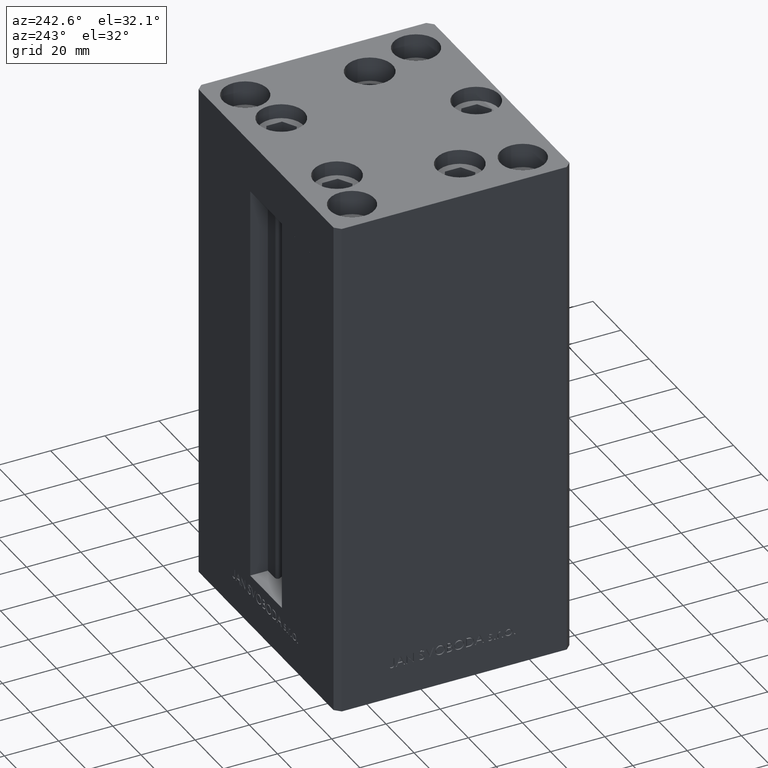
[diagram: clean part render]
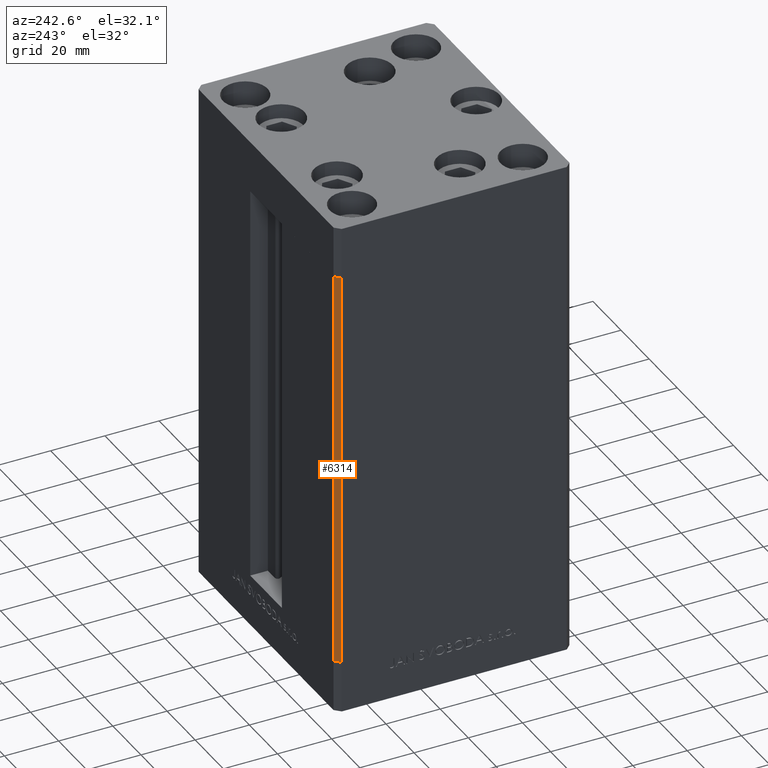
[diagram: same view with one face highlighted and labeled with its STEP entity id]
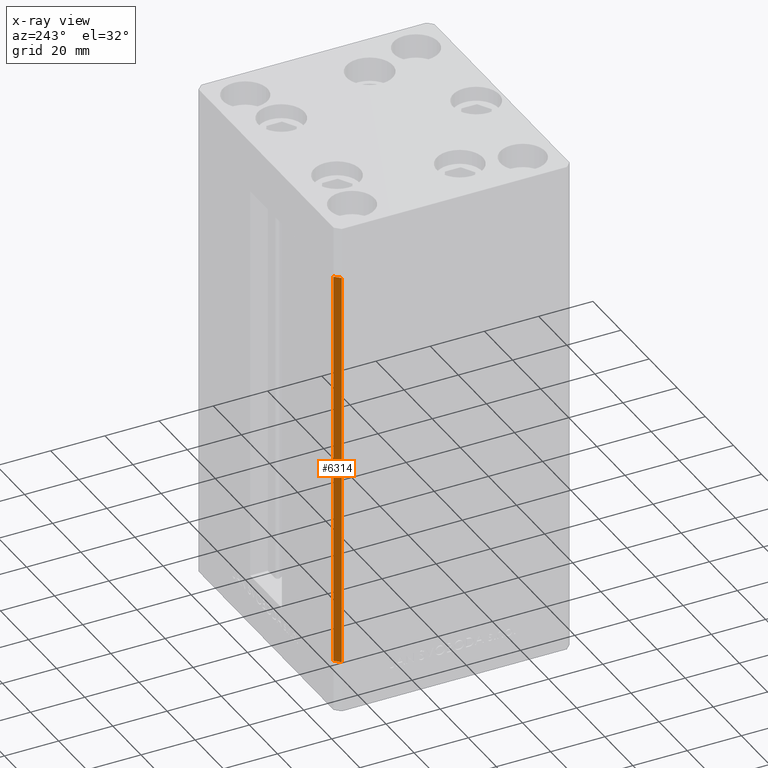
[diagram: x-ray of the same camera — body ghosted, the highlighted face saturated]
A machine part, auxiliary view. The second image highlights one B-rep face of the part: STEP entity #6314.
The next image is the same camera in x-ray: the body ghosted, the highlighted face saturated — about 0% of this face is hidden behind the body in this view.
In plain terms, the highlighted planar face has unit normal (0.7071, -0.7071, 0).
Its self-contained STEP definition (entity closure, byte-faithful):
#832 = CARTESIAN_POINT ( 'NONE',  ( -48.00000000000000711, 43.50000000000000000, 0.000000000000000000 ) ) ;
#2071 = CARTESIAN_POINT ( 'NONE',  ( -48.00000000000000711, 43.50000000000000000, 148.5000000000000000 ) ) ;
#3259 = EDGE_CURVE ( 'NONE', #13105, #35859, #6102, .T. ) ;
#3420 = VECTOR ( 'NONE', #36685, 1000.000000000000000 ) ;
#3711 = DIRECTION ( 'NONE',  ( -0.000000000000000000, -0.000000000000000000, -1.000000000000000000 ) ) ;
#6086 = LINE ( 'NONE', #2071, #3420 ) ;
#6102 = LINE ( 'NONE', #43738, #36860 ) ;
#6314 = ADVANCED_FACE ( 'NONE', ( #38898 ), #47164, .F. ) ;
#11240 = LINE ( 'NONE', #22529, #28322 ) ;
#11816 = ORIENTED_EDGE ( 'NONE', *, *, #21208, .F. ) ;
#12001 = VECTOR ( 'NONE', #23896, 1000.000000000000000 ) ;
#12795 = DIRECTION ( 'NONE',  ( 0.7071067811865487940, 0.7071067811865463515, 0.000000000000000000 ) ) ;
#13105 = VERTEX_POINT ( 'NONE', #48523 ) ;
#13369 = LINE ( 'NONE', #832, #12001 ) ;
#13695 = VERTEX_POINT ( 'NONE', #38877 ) ;
#14123 = DIRECTION ( 'NONE',  ( -0.7071067811865487940, -0.7071067811865463515, 0.000000000000000000 ) ) ;
#15381 = EDGE_CURVE ( 'NONE', #13105, #17400, #6086, .T. ) ;
#15810 = CARTESIAN_POINT ( 'NONE',  ( -48.00000000000000711, 43.50000000000000000, 148.5000000000000000 ) ) ;
#17400 = VERTEX_POINT ( 'NONE', #24987 ) ;
#20330 = DIRECTION ( 'NONE',  ( 0.7071067811865463515, -0.7071067811865487940, 0.000000000000000000 ) ) ;
#21208 = EDGE_CURVE ( 'NONE', #35859, #13695, #11240, .T. ) ;
#22529 = CARTESIAN_POINT ( 'NONE',  ( -50.00000000000001421, 41.49999999999999289, 148.5000000000000000 ) ) ;
#23896 = DIRECTION ( 'NONE',  ( -0.7071067811865487940, -0.7071067811865463515, 0.000000000000000000 ) ) ;
#24987 = CARTESIAN_POINT ( 'NONE',  ( -48.00000000000000711, 43.50000000000000000, 0.000000000000000000 ) ) ;
#28322 = VECTOR ( 'NONE', #3711, 1000.000000000000000 ) ;
#30043 = CARTESIAN_POINT ( 'NONE',  ( -50.00000000000001421, 41.49999999999999289, 148.5000000000000000 ) ) ;
#35859 = VERTEX_POINT ( 'NONE', #30043 ) ;
#36685 = DIRECTION ( 'NONE',  ( -0.000000000000000000, -0.000000000000000000, -1.000000000000000000 ) ) ;
#36860 = VECTOR ( 'NONE', #14123, 1000.000000000000000 ) ;
#38877 = CARTESIAN_POINT ( 'NONE',  ( -50.00000000000001421, 41.49999999999999289, 0.000000000000000000 ) ) ;
#38898 = FACE_OUTER_BOUND ( 'NONE', #42818, .T. ) ;
#42818 = EDGE_LOOP ( 'NONE', ( #48684, #11816, #44403, #48894 ) ) ;
#43738 = CARTESIAN_POINT ( 'NONE',  ( -48.00000000000000711, 43.50000000000000000, 148.5000000000000000 ) ) ;
#44403 = ORIENTED_EDGE ( 'NONE', *, *, #3259, .F. ) ;
#45013 = EDGE_CURVE ( 'NONE', #17400, #13695, #13369, .T. ) ;
#47164 = PLANE ( 'NONE',  #47363 ) ;
#47363 = AXIS2_PLACEMENT_3D ( 'NONE', #15810, #20330, #12795 ) ;
#48523 = CARTESIAN_POINT ( 'NONE',  ( -48.00000000000000711, 43.50000000000000000, 148.5000000000000000 ) ) ;
#48684 = ORIENTED_EDGE ( 'NONE', *, *, #45013, .T. ) ;
#48894 = ORIENTED_EDGE ( 'NONE', *, *, #15381, .T. ) ;